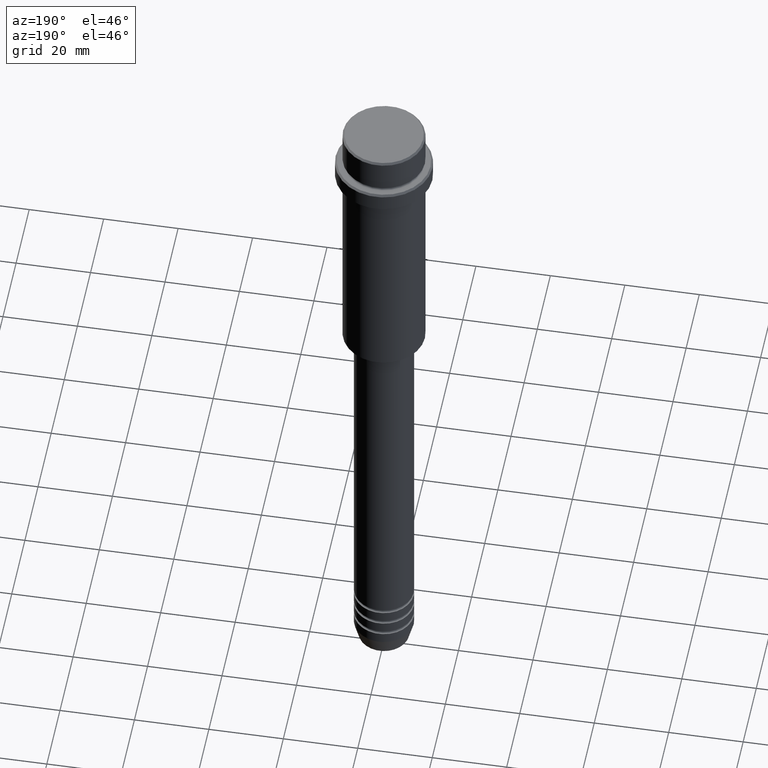
[diagram: clean part render]
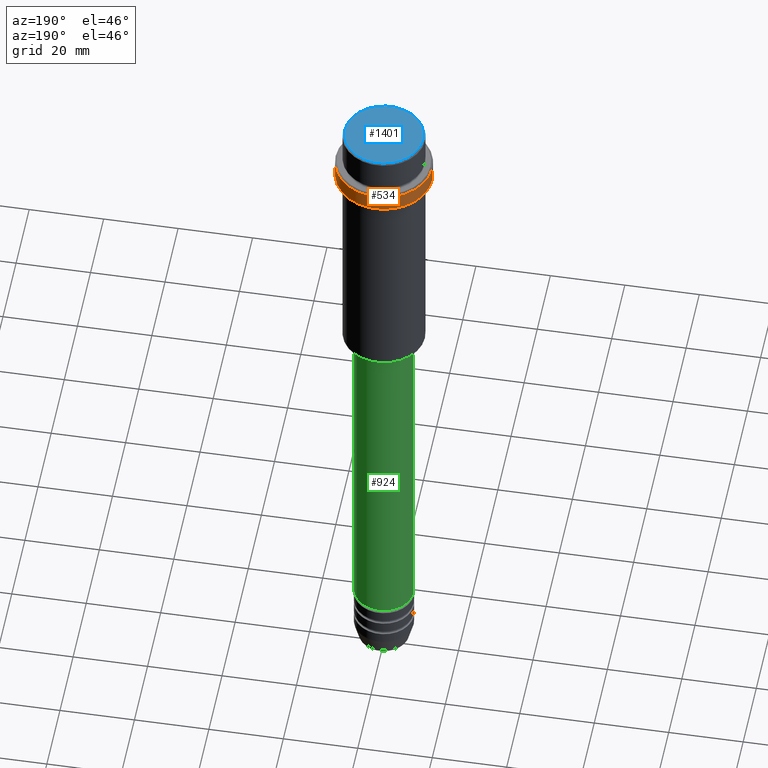
[diagram: same view with three faces highlighted in distinct colors, each labeled with its STEP entity id]
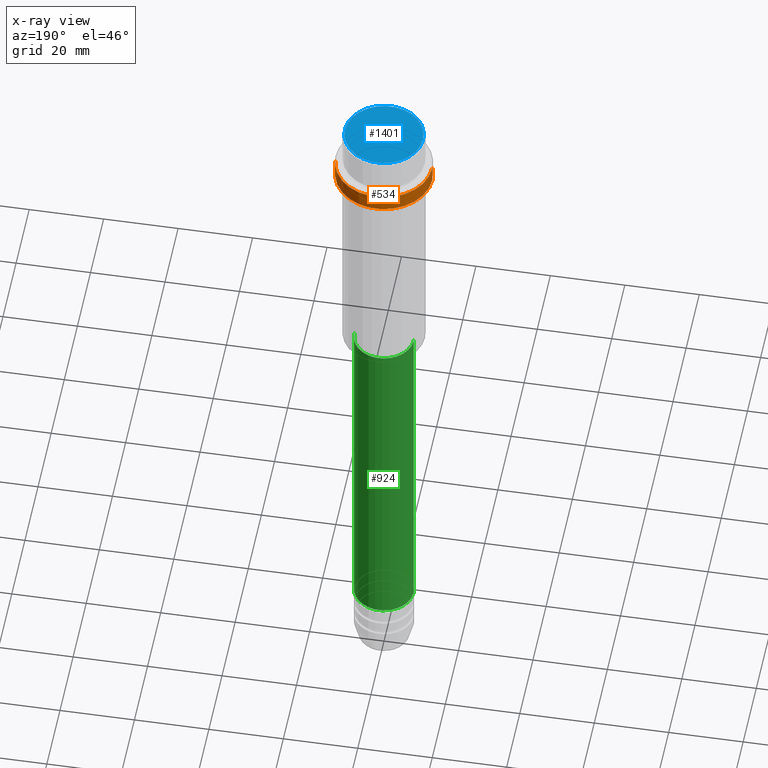
[diagram: x-ray of the same camera — body ghosted, the three highlighted faces saturated]
A machine part, auxiliary view with three faces highlighted in distinct colors.
The next image is the same camera in x-ray (body ghosted, the three faces saturated) — at least one of them is partly hidden behind the body in this view.
Their STEP definitions:

[orange] entity #534 — the highlighted cylindrical surface (partial cylindrical patch) has radius 13 mm, axis along (-0, -0, 1).
#7 = VECTOR ( 'NONE', #676, 1000.000000000000000 ) ;
#21 = CARTESIAN_POINT ( 'NONE',  ( 13.00000000000000000, 0.000000000000000000, 0.000000000000000000 ) ) ;
#28 = CARTESIAN_POINT ( 'NONE',  ( 0.000000000000000000, 0.000000000000000000, -10.50000000000000711 ) ) ;
#48 = ORIENTED_EDGE ( 'NONE', *, *, #1105, .F. ) ;
#193 = DIRECTION ( 'NONE',  ( 1.000000000000000000, 0.000000000000000000, 0.000000000000000000 ) ) ;
#202 = DIRECTION ( 'NONE',  ( -0.000000000000000000, -0.000000000000000000, 1.000000000000000000 ) ) ;
#205 = FACE_OUTER_BOUND ( 'NONE', #774, .T. ) ;
#211 = VERTEX_POINT ( 'NONE', #355 ) ;
#243 = VECTOR ( 'NONE', #1180, 1000.000000000000000 ) ;
#260 = CARTESIAN_POINT ( 'NONE',  ( 13.00000000000000000, 0.000000000000000000, -15.00000000000000178 ) ) ;
#302 = CIRCLE ( 'NONE', #1262, 13.00000000000000000 ) ;
#316 = CYLINDRICAL_SURFACE ( 'NONE', #715, 13.00000000000000000 ) ;
#343 = LINE ( 'NONE', #21, #7 ) ;
#352 = DIRECTION ( 'NONE',  ( 0.000000000000000000, 0.000000000000000000, -1.000000000000000000 ) ) ;
#355 = CARTESIAN_POINT ( 'NONE',  ( -13.00000000000000000, 1.592040838891559095E-15, -10.50000000000000711 ) ) ;
#384 = DIRECTION ( 'NONE',  ( 1.000000000000000000, 0.000000000000000000, 0.000000000000000000 ) ) ;
#404 = EDGE_CURVE ( 'NONE', #1117, #211, #1047, .T. ) ;
#413 = CARTESIAN_POINT ( 'NONE',  ( -13.00000000000000000, 1.592040838891559095E-15, 0.000000000000000000 ) ) ;
#534 = ADVANCED_FACE ( 'NONE', ( #205 ), #316, .T. ) ;
#554 = AXIS2_PLACEMENT_3D ( 'NONE', #28, #352, #914 ) ;
#557 = ORIENTED_EDGE ( 'NONE', *, *, #404, .T. ) ;
#606 = ORIENTED_EDGE ( 'NONE', *, *, #822, .T. ) ;
#652 = CARTESIAN_POINT ( 'NONE',  ( 0.000000000000000000, 0.000000000000000000, 0.000000000000000000 ) ) ;
#676 = DIRECTION ( 'NONE',  ( -0.000000000000000000, -0.000000000000000000, 1.000000000000000000 ) ) ;
#715 = AXIS2_PLACEMENT_3D ( 'NONE', #652, #202, #193 ) ;
#752 = VERTEX_POINT ( 'NONE', #260 ) ;
#774 = EDGE_LOOP ( 'NONE', ( #606, #557, #996, #48 ) ) ;
#822 = EDGE_CURVE ( 'NONE', #752, #1117, #302, .T. ) ;
#914 = DIRECTION ( 'NONE',  ( 1.000000000000000000, 0.000000000000000000, 0.000000000000000000 ) ) ;
#988 = CARTESIAN_POINT ( 'NONE',  ( 13.00000000000000000, 0.000000000000000000, -10.50000000000000711 ) ) ;
#996 = ORIENTED_EDGE ( 'NONE', *, *, #1335, .T. ) ;
#1040 = CARTESIAN_POINT ( 'NONE',  ( 0.000000000000000000, 0.000000000000000000, -15.00000000000000178 ) ) ;
#1047 = LINE ( 'NONE', #413, #243 ) ;
#1105 = EDGE_CURVE ( 'NONE', #752, #1359, #343, .T. ) ;
#1117 = VERTEX_POINT ( 'NONE', #1206 ) ;
#1180 = DIRECTION ( 'NONE',  ( -0.000000000000000000, -0.000000000000000000, 1.000000000000000000 ) ) ;
#1206 = CARTESIAN_POINT ( 'NONE',  ( -13.00000000000000000, 1.592040838891559095E-15, -15.00000000000000178 ) ) ;
#1235 = CIRCLE ( 'NONE', #554, 13.00000000000000000 ) ;
#1262 = AXIS2_PLACEMENT_3D ( 'NONE', #1040, #1363, #384 ) ;
#1335 = EDGE_CURVE ( 'NONE', #211, #1359, #1235, .T. ) ;
#1359 = VERTEX_POINT ( 'NONE', #988 ) ;
#1363 = DIRECTION ( 'NONE',  ( -0.000000000000000000, -0.000000000000000000, 1.000000000000000000 ) ) ;

[blue] entity #1401 — the highlighted planar face has unit normal (0, -0, 1).
#3 = DIRECTION ( 'NONE',  ( -0.000000000000000000, -0.000000000000000000, 1.000000000000000000 ) ) ;
#17 = VERTEX_POINT ( 'NONE', #465 ) ;
#113 = EDGE_CURVE ( 'NONE', #17, #1156, #780, .T. ) ;
#141 = AXIS2_PLACEMENT_3D ( 'NONE', #212, #3, #464 ) ;
#212 = CARTESIAN_POINT ( 'NONE',  ( 0.000000000000000000, 0.000000000000000000, 0.000000000000000000 ) ) ;
#326 = AXIS2_PLACEMENT_3D ( 'NONE', #607, #1396, #1057 ) ;
#334 = ORIENTED_EDGE ( 'NONE', *, *, #1361, .T. ) ;
#407 = DIRECTION ( 'NONE',  ( -0.000000000000000000, -0.000000000000000000, 1.000000000000000000 ) ) ;
#430 = ORIENTED_EDGE ( 'NONE', *, *, #113, .T. ) ;
#464 = DIRECTION ( 'NONE',  ( 1.000000000000000000, 0.000000000000000000, 0.000000000000000000 ) ) ;
#465 = CARTESIAN_POINT ( 'NONE',  ( 10.50000000000000888, 1.316495309083404420E-15, 0.000000000000000000 ) ) ;
#607 = CARTESIAN_POINT ( 'NONE',  ( 0.000000000000000000, 0.000000000000000000, 0.000000000000000000 ) ) ;
#744 = FACE_OUTER_BOUND ( 'NONE', #1344, .T. ) ;
#780 = CIRCLE ( 'NONE', #1122, 10.50000000000000888 ) ;
#848 = PLANE ( 'NONE',  #326 ) ;
#855 = DIRECTION ( 'NONE',  ( 1.000000000000000000, 0.000000000000000000, 0.000000000000000000 ) ) ;
#928 = CIRCLE ( 'NONE', #141, 10.50000000000000888 ) ;
#1003 = CARTESIAN_POINT ( 'NONE',  ( -10.50000000000000888, 0.000000000000000000, 0.000000000000000000 ) ) ;
#1057 = DIRECTION ( 'NONE',  ( 1.000000000000000000, 0.000000000000000000, 0.000000000000000000 ) ) ;
#1122 = AXIS2_PLACEMENT_3D ( 'NONE', #1391, #407, #855 ) ;
#1156 = VERTEX_POINT ( 'NONE', #1003 ) ;
#1344 = EDGE_LOOP ( 'NONE', ( #334, #430 ) ) ;
#1361 = EDGE_CURVE ( 'NONE', #1156, #17, #928, .T. ) ;
#1391 = CARTESIAN_POINT ( 'NONE',  ( 0.000000000000000000, 0.000000000000000000, 0.000000000000000000 ) ) ;
#1396 = DIRECTION ( 'NONE',  ( 0.000000000000000000, -0.000000000000000000, 1.000000000000000000 ) ) ;
#1401 = ADVANCED_FACE ( 'NONE', ( #744 ), #848, .T. ) ;

[green] entity #924 — the highlighted cylindrical surface (edge-blend (fillet) strip) has radius 8 mm, axis along (-0, -0, 1).
#11 = CYLINDRICAL_SURFACE ( 'NONE', #1036, 8.000000000000000000 ) ;
#14 = DIRECTION ( 'NONE',  ( -0.000000000000000000, -0.000000000000000000, 1.000000000000000000 ) ) ;
#43 = CARTESIAN_POINT ( 'NONE',  ( 0.000000000000000000, 0.000000000000000000, -172.9999999999999147 ) ) ;
#52 = EDGE_CURVE ( 'NONE', #93, #244, #505, .T. ) ;
#83 = CARTESIAN_POINT ( 'NONE',  ( 0.000000000000000000, 0.000000000000000000, -77.00000000000000000 ) ) ;
#93 = VERTEX_POINT ( 'NONE', #981 ) ;
#166 = CARTESIAN_POINT ( 'NONE',  ( -8.000000000000000000, 9.797174393178825657E-16, -77.00000000000000000 ) ) ;
#183 = CARTESIAN_POINT ( 'NONE',  ( -8.000000000000000000, 9.797174393178825657E-16, 0.000000000000000000 ) ) ;
#244 = VERTEX_POINT ( 'NONE', #166 ) ;
#261 = ORIENTED_EDGE ( 'NONE', *, *, #52, .F. ) ;
#349 = DIRECTION ( 'NONE',  ( -0.000000000000000000, -0.000000000000000000, 1.000000000000000000 ) ) ;
#356 = CARTESIAN_POINT ( 'NONE',  ( -8.000000000000000000, 9.797174393178825657E-16, -172.9999999999999147 ) ) ;
#363 = AXIS2_PLACEMENT_3D ( 'NONE', #83, #1174, #960 ) ;
#444 = EDGE_CURVE ( 'NONE', #1169, #746, #1151, .T. ) ;
#449 = DIRECTION ( 'NONE',  ( 1.000000000000000000, 0.000000000000000000, 0.000000000000000000 ) ) ;
#460 = VECTOR ( 'NONE', #1054, 1000.000000000000000 ) ;
#505 = CIRCLE ( 'NONE', #363, 8.000000000000000000 ) ;
#521 = LINE ( 'NONE', #183, #690 ) ;
#599 = AXIS2_PLACEMENT_3D ( 'NONE', #43, #349, #929 ) ;
#611 = CARTESIAN_POINT ( 'NONE',  ( 8.000000000000000000, 0.000000000000000000, 0.000000000000000000 ) ) ;
#655 = FACE_OUTER_BOUND ( 'NONE', #1049, .T. ) ;
#690 = VECTOR ( 'NONE', #763, 1000.000000000000000 ) ;
#726 = ORIENTED_EDGE ( 'NONE', *, *, #444, .T. ) ;
#746 = VERTEX_POINT ( 'NONE', #356 ) ;
#763 = DIRECTION ( 'NONE',  ( -0.000000000000000000, -0.000000000000000000, 1.000000000000000000 ) ) ;
#847 = ORIENTED_EDGE ( 'NONE', *, *, #1043, .T. ) ;
#924 = ADVANCED_FACE ( 'NONE', ( #655 ), #11, .T. ) ;
#929 = DIRECTION ( 'NONE',  ( 1.000000000000000000, 0.000000000000000000, 0.000000000000000000 ) ) ;
#960 = DIRECTION ( 'NONE',  ( 1.000000000000000000, 0.000000000000000000, 0.000000000000000000 ) ) ;
#981 = CARTESIAN_POINT ( 'NONE',  ( 8.000000000000000000, 0.000000000000000000, -77.00000000000000000 ) ) ;
#1023 = ORIENTED_EDGE ( 'NONE', *, *, #1225, .F. ) ;
#1036 = AXIS2_PLACEMENT_3D ( 'NONE', #1108, #14, #449 ) ;
#1038 = LINE ( 'NONE', #611, #460 ) ;
#1043 = EDGE_CURVE ( 'NONE', #746, #244, #521, .T. ) ;
#1049 = EDGE_LOOP ( 'NONE', ( #726, #847, #261, #1023 ) ) ;
#1054 = DIRECTION ( 'NONE',  ( -0.000000000000000000, -0.000000000000000000, 1.000000000000000000 ) ) ;
#1108 = CARTESIAN_POINT ( 'NONE',  ( 0.000000000000000000, 0.000000000000000000, 0.000000000000000000 ) ) ;
#1130 = CARTESIAN_POINT ( 'NONE',  ( 8.000000000000000000, 0.000000000000000000, -172.9999999999999147 ) ) ;
#1151 = CIRCLE ( 'NONE', #599, 8.000000000000000000 ) ;
#1169 = VERTEX_POINT ( 'NONE', #1130 ) ;
#1174 = DIRECTION ( 'NONE',  ( -0.000000000000000000, -0.000000000000000000, 1.000000000000000000 ) ) ;
#1225 = EDGE_CURVE ( 'NONE', #1169, #93, #1038, .T. ) ;